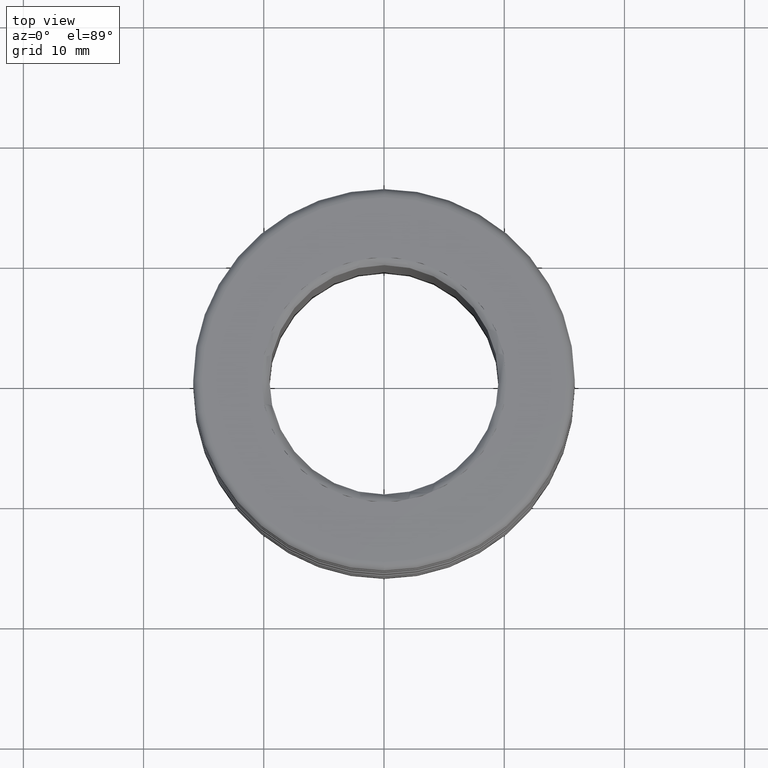
[diagram: clean part render]
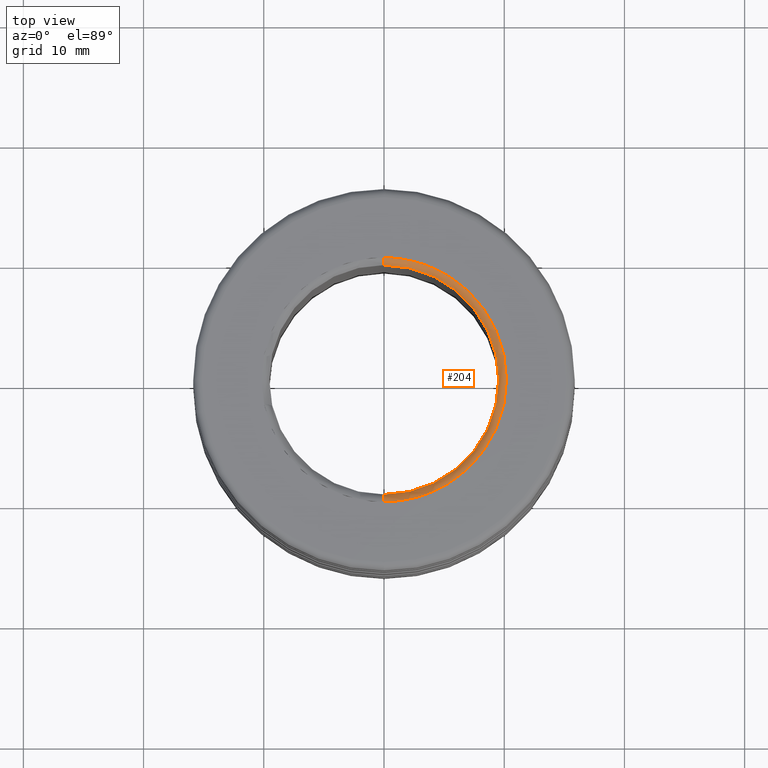
[diagram: same view with one face highlighted and labeled with its STEP entity id]
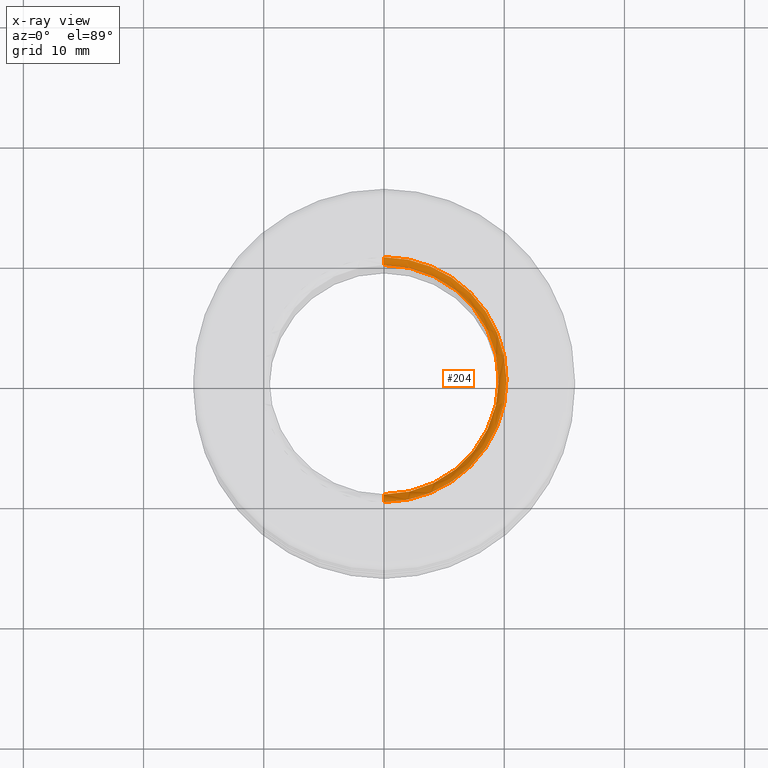
[diagram: x-ray of the same camera — body ghosted, the highlighted face saturated]
A machine part, top view. The second image highlights one B-rep face of the part: STEP entity #204.
The next image is the same camera in x-ray: the body ghosted, the highlighted face saturated — about 0% of this face is hidden behind the body in this view.
In plain terms, the highlighted toroidal blend (fillet) surface has major radius 10.2076 mm and minor (blend) radius 0.762 mm.
Its self-contained STEP definition (entity closure, byte-faithful):
#7 = EDGE_CURVE ( 'NONE', #1900, #1432, #2541, .T. ) ;
#23 = CARTESIAN_POINT ( 'NONE',  ( 0.000000000000000000, 0.4018749999999999267, 0.7787499999999999423 ) ) ;
#152 = DIRECTION ( 'NONE',  ( -8.881784197001252323E-16, 1.000000000000000000, 0.000000000000000000 ) ) ;
#204 = ADVANCED_FACE ( 'NONE', ( #1793 ), #1021, .T. ) ;
#298 = CIRCLE ( 'NONE', #1881, 0.02999999999999995379 ) ;
#314 = CARTESIAN_POINT ( 'NONE',  ( 0.000000000000000000, -7.196857720621940921E-17, 0.8087372368683743984 ) ) ;
#317 = VERTEX_POINT ( 'NONE', #579 ) ;
#459 = VERTEX_POINT ( 'NONE', #1914 ) ;
#463 = DIRECTION ( 'NONE',  ( -0.000000000000000000, 1.224646799147352961E-16, -1.000000000000000000 ) ) ;
#484 = AXIS2_PLACEMENT_3D ( 'NONE', #314, #531, #1396 ) ;
#513 = AXIS2_PLACEMENT_3D ( 'NONE', #1276, #627, #152 ) ;
#531 = DIRECTION ( 'NONE',  ( 0.000000000000000000, -1.224646799147352961E-16, 1.000000000000000000 ) ) ;
#579 = CARTESIAN_POINT ( 'NONE',  ( 0.000000000000000000, 0.3756249999999998757, 0.7932736875482777616 ) ) ;
#580 = CARTESIAN_POINT ( 'NONE',  ( 4.910833664580875487E-17, -0.4009999999999992459, 0.8087372368683743984 ) ) ;
#627 = DIRECTION ( 'NONE',  ( 0.000000000000000000, -1.224646799147352961E-16, 1.000000000000000000 ) ) ;
#706 = CARTESIAN_POINT ( 'NONE',  ( 0.000000000000000000, -7.007483858838805250E-17, 0.7932736875482777616 ) ) ;
#946 = CARTESIAN_POINT ( 'NONE',  ( 0.000000000000000000, -6.829619984160658046E-17, 0.7787499999999999423 ) ) ;
#1021 = TOROIDAL_SURFACE ( 'NONE', #2592, 0.4018749999999999822, 0.02999999999999998848 ) ;
#1027 = VERTEX_POINT ( 'NONE', #1187 ) ;
#1117 = DIRECTION ( 'NONE',  ( 0.000000000000000000, 1.000000000000000000, 0.000000000000000000 ) ) ;
#1165 = ORIENTED_EDGE ( 'NONE', *, *, #2114, .T. ) ;
#1187 = CARTESIAN_POINT ( 'NONE',  ( 0.000000000000000000, 0.4009999999999990794, 0.8087372368683743984 ) ) ;
#1248 = AXIS2_PLACEMENT_3D ( 'NONE', #2385, #1947, #1117 ) ;
#1276 = CARTESIAN_POINT ( 'NONE',  ( 0.000000000000000000, -7.196857720621940921E-17, 0.8087372368683743984 ) ) ;
#1323 = DIRECTION ( 'NONE',  ( -1.000000000000000000, 0.000000000000000000, 0.000000000000000000 ) ) ;
#1396 = DIRECTION ( 'NONE',  ( 0.000000000000000000, 1.000000000000000000, 0.000000000000000000 ) ) ;
#1399 = ORIENTED_EDGE ( 'NONE', *, *, #7, .T. ) ;
#1432 = VERTEX_POINT ( 'NONE', #580 ) ;
#1442 = EDGE_CURVE ( 'NONE', #2535, #1027, #1739, .T. ) ;
#1489 = DIRECTION ( 'NONE',  ( -1.224646799147354933E-16, 1.000000000000000000, 0.000000000000000000 ) ) ;
#1660 = CIRCLE ( 'NONE', #2718, 0.3756249999999999867 ) ;
#1680 = EDGE_LOOP ( 'NONE', ( #1779, #2521, #1399, #1165, #2076, #2340 ) ) ;
#1710 = CARTESIAN_POINT ( 'NONE',  ( 4.921549324073425743E-17, -0.4018750000000000933, 0.7787499999999999423 ) ) ;
#1739 = CIRCLE ( 'NONE', #513, 0.4010000000000000231 ) ;
#1779 = ORIENTED_EDGE ( 'NONE', *, *, #1786, .T. ) ;
#1786 = EDGE_CURVE ( 'NONE', #317, #459, #1877, .T. ) ;
#1793 = FACE_OUTER_BOUND ( 'NONE', #1680, .T. ) ;
#1832 = DIRECTION ( 'NONE',  ( -0.000000000000000000, 1.224646799147352961E-16, -1.000000000000000000 ) ) ;
#1833 = CIRCLE ( 'NONE', #484, 0.4010000000000000231 ) ;
#1877 = CIRCLE ( 'NONE', #1248, 0.3756249999999999867 ) ;
#1881 = AXIS2_PLACEMENT_3D ( 'NONE', #23, #1323, #2012 ) ;
#1900 = VERTEX_POINT ( 'NONE', #2184 ) ;
#1914 = CARTESIAN_POINT ( 'NONE',  ( 0.3756249999999999867, 4.600079539297244081E-17, 0.7932736875482777616 ) ) ;
#1947 = DIRECTION ( 'NONE',  ( -0.000000000000000000, 1.224646799147352961E-16, -1.000000000000000000 ) ) ;
#1976 = AXIS2_PLACEMENT_3D ( 'NONE', #1710, #2503, #1489 ) ;
#2012 = DIRECTION ( 'NONE',  ( 0.000000000000000000, 0.000000000000000000, 1.000000000000000000 ) ) ;
#2034 = EDGE_CURVE ( 'NONE', #459, #1900, #1660, .T. ) ;
#2035 = EDGE_CURVE ( 'NONE', #317, #1027, #298, .T. ) ;
#2076 = ORIENTED_EDGE ( 'NONE', *, *, #1442, .T. ) ;
#2114 = EDGE_CURVE ( 'NONE', #1432, #2535, #1833, .T. ) ;
#2184 = CARTESIAN_POINT ( 'NONE',  ( 4.755456601939066563E-17, -0.3756250000000000422, 0.7932736875482777616 ) ) ;
#2253 = DIRECTION ( 'NONE',  ( 0.000000000000000000, 1.000000000000000000, 0.000000000000000000 ) ) ;
#2340 = ORIENTED_EDGE ( 'NONE', *, *, #2035, .F. ) ;
#2385 = CARTESIAN_POINT ( 'NONE',  ( 0.000000000000000000, -7.007483858838805250E-17, 0.7932736875482777616 ) ) ;
#2488 = DIRECTION ( 'NONE',  ( 0.000000000000000000, 1.000000000000000000, 1.224646799147352961E-16 ) ) ;
#2503 = DIRECTION ( 'NONE',  ( 1.000000000000000000, 1.224646799147353207E-16, 1.499759782661857334E-32 ) ) ;
#2521 = ORIENTED_EDGE ( 'NONE', *, *, #2034, .T. ) ;
#2535 = VERTEX_POINT ( 'NONE', #2639 ) ;
#2541 = CIRCLE ( 'NONE', #1976, 0.02999999999999995379 ) ;
#2592 = AXIS2_PLACEMENT_3D ( 'NONE', #946, #1832, #2488 ) ;
#2639 = CARTESIAN_POINT ( 'NONE',  ( 0.4010000000000000231, 4.910833664580885964E-17, 0.8087372368683743984 ) ) ;
#2718 = AXIS2_PLACEMENT_3D ( 'NONE', #706, #463, #2253 ) ;